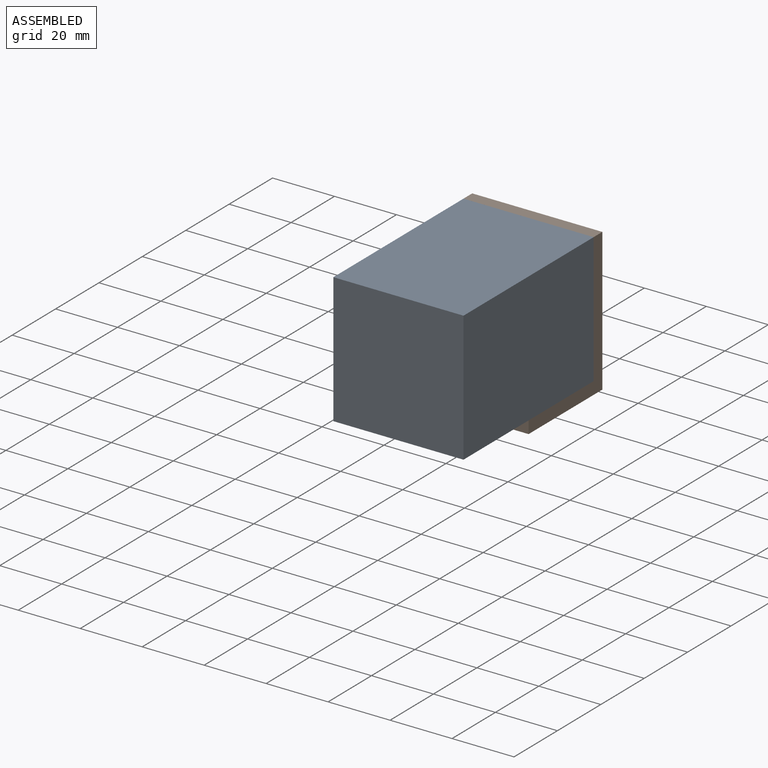
[diagram: assembled view]
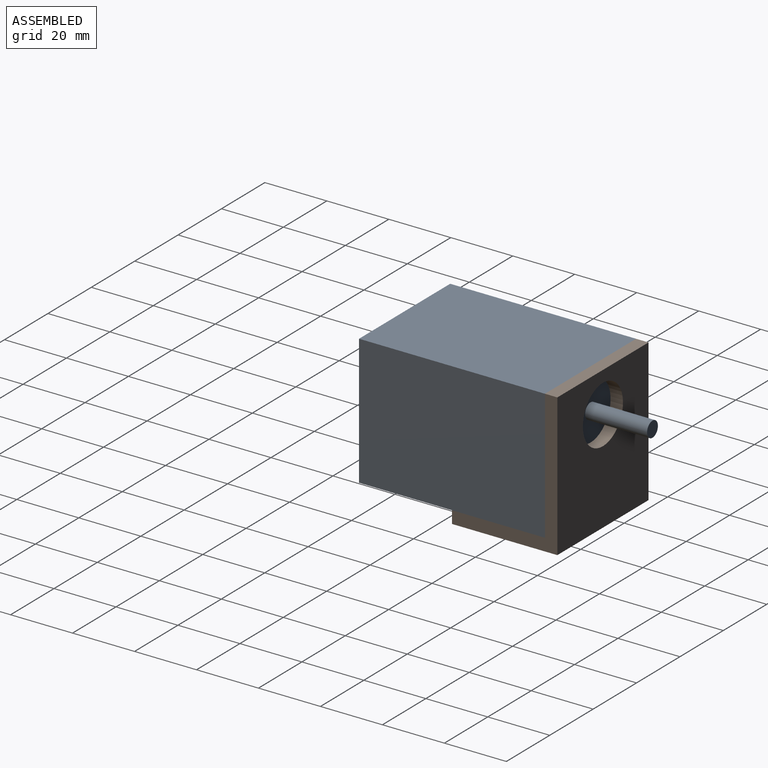
[diagram: assembled view, second angle]
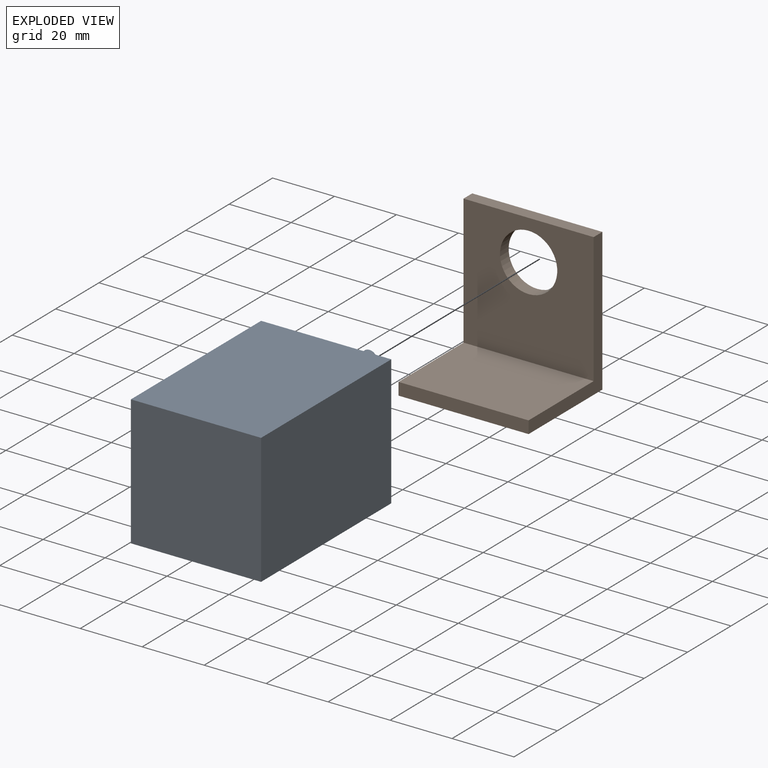
[diagram: exploded view]
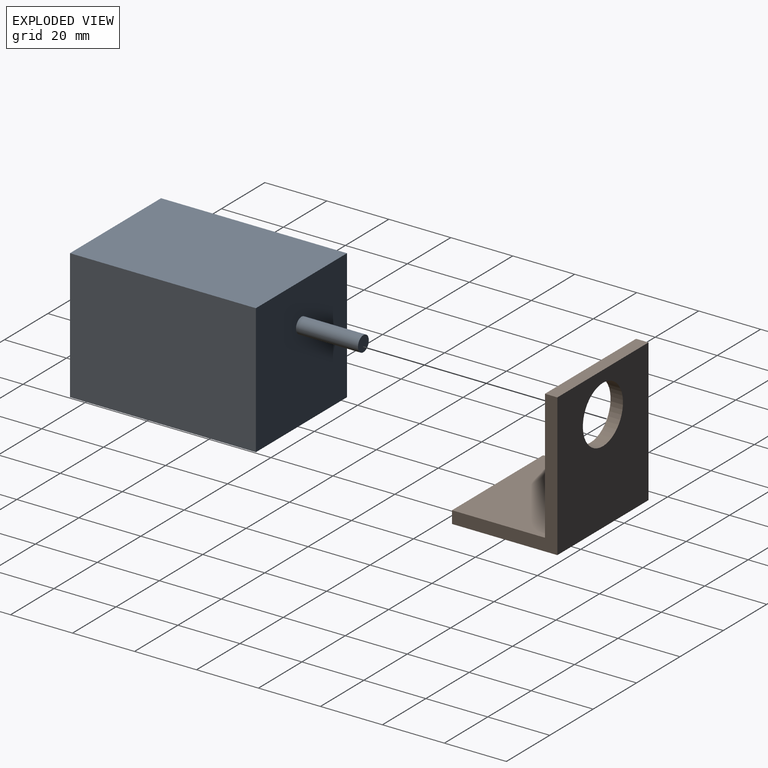
[diagram: exploded view, second angle]
ASSEMBLY  parts=2 mates=3
PART A: 8 faces, bbox 42x80x42 mm
  f0: plane 60x42mm, normal (0,0,1), area 2520mm2, adj f1,f3,f4,f5
  f1: plane 60x42mm, normal (-1,0,0), area 2520mm2, adj f0,f2,f4,f5
  f2: plane 60x42mm, normal (0,0,-1), area 2520mm2, adj f1,f3,f4,f5
  f3: plane 60x42mm, normal (1,0,0), area 2520mm2, adj f0,f2,f4,f5
  f4: plane 42x42mm, normal (0,-1,0), area 1764mm2, adj f0,f1,f2,f3
  f5: plane 42x42mm, normal (0,1,0), area 1744.4mm2, adj f0,f1,f2,f3,f6
  f6: cylinder r=2.5mm len=20mm, axis (0,-1,0), area 314.2mm2, adj f5,f7
  f7: plane 5x5mm, normal (0,1,0), area 19.6mm2, adj f6
PART B: 9 faces, bbox 42x34x46 mm
  f0: plane 46x42mm, normal (0,1,0), area 1663.2mm2, adj f1,f3,f4,f5,f8
  f1: plane 46x34mm, normal (-1,0,0), area 304mm2, adj f0,f2,f4,f5,f6,f7
  f2: plane 42x42mm, normal (0,-1,0), area 1495.2mm2, adj f1,f3,f4,f6,f8
  f3: plane 46x34mm, normal (1,0,0), area 304mm2, adj f0,f2,f4,f5,f6,f7
  f4: plane 42x4mm, normal (0,0,1), area 168mm2, adj f0,f1,f2,f3
  f5: plane 42x34mm, normal (0,0,-1), area 1428mm2, adj f0,f1,f3,f7
  f6: plane 42x30mm, normal (0,0,1), area 1260mm2, adj f1,f2,f3,f7
  f7: plane 42x4mm, normal (0,-1,0), area 168mm2, adj f1,f3,f5,f6
  f8: cylinder r=9.25mm len=18.5mm, axis (0,-1,0), area 232.5mm2, adj f0,f2
PLACE A t=(-37.76,-54.09,23.34)mm
PLACE B t=(-37.76,-54.09,23.34)mm fixed
MATE planar A.f5 <-> B.f2  axis (0,1,0) through (-91.76,-5.09,54.25)mm
MATE cylindrical B.f8 <-> A.f6  axis (0,1,0) through (-91.76,-1.09,62.34)mm
MATE parallel B.f6 <-> A.f2  axis (0,0,1) through (-91.76,-20.09,33.34)mm
